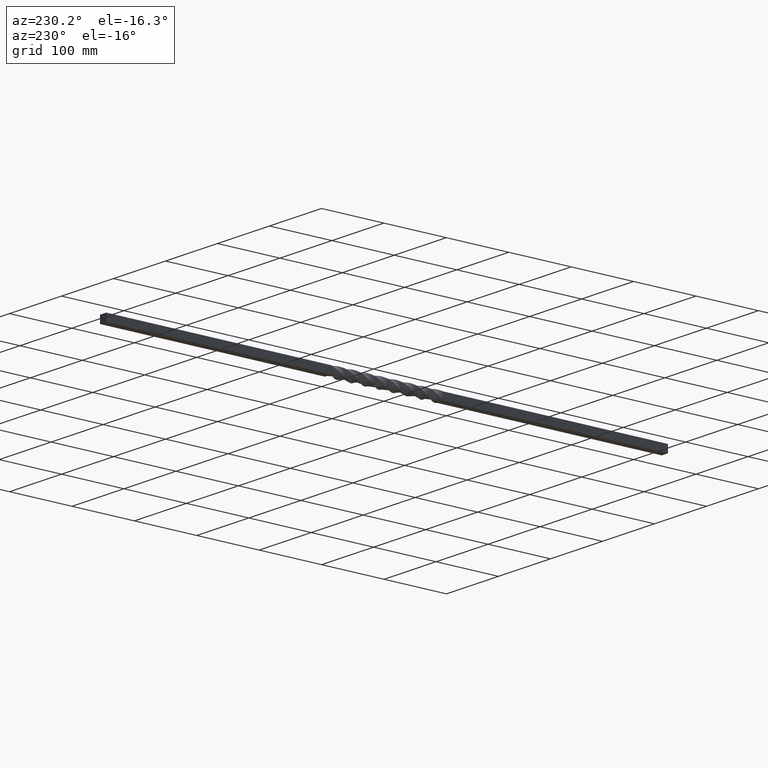
[diagram: clean part render]
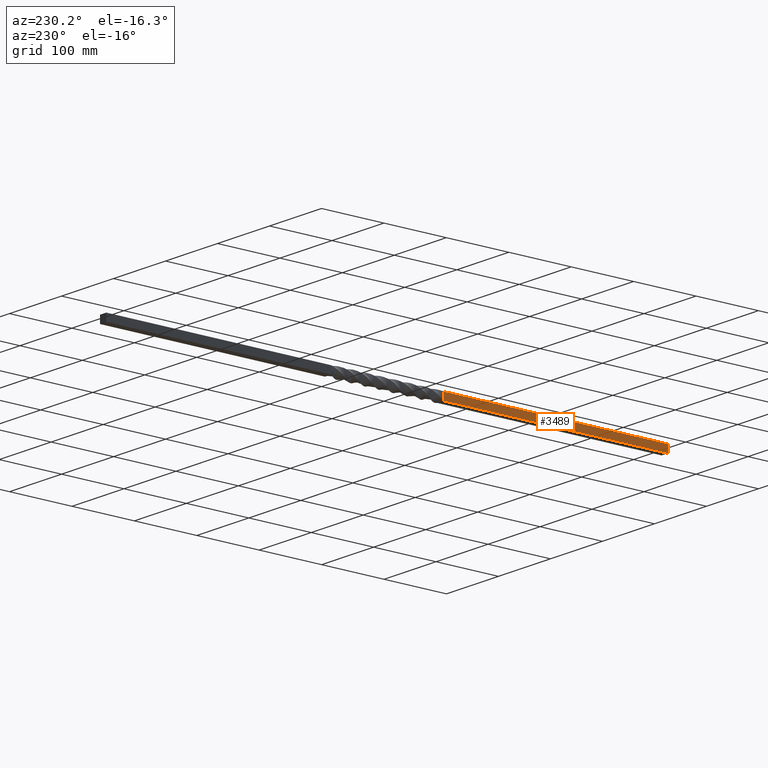
[diagram: same view with one face highlighted and labeled with its STEP entity id]
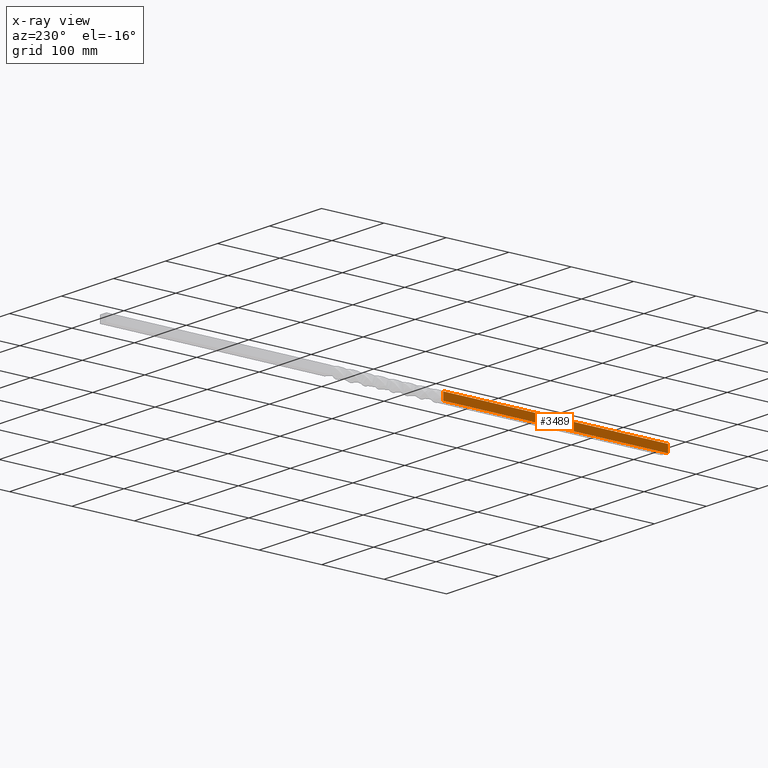
[diagram: x-ray of the same camera — body ghosted, the highlighted face saturated]
A machine part, auxiliary view. The second image highlights one B-rep face of the part: STEP entity #3489.
The next image is the same camera in x-ray: the body ghosted, the highlighted face saturated — about 0% of this face is hidden behind the body in this view.
In plain terms, the highlighted planar face has unit normal (1, 0, 0).
Its self-contained STEP definition (entity closure, byte-faithful):
#227 = VERTEX_POINT ( 'NONE', #8304 ) ;
#525 = CARTESIAN_POINT ( 'NONE',  ( -5.999999997126725937, -450.0000000000000000, -6.000000006995465540 ) ) ;
#974 = CARTESIAN_POINT ( 'NONE',  ( -6.000000000000000888, -90.00000000000000000, 0.000000000000000000 ) ) ;
#1280 = ORIENTED_EDGE ( 'NONE', *, *, #5200, .T. ) ;
#1424 = LINE ( 'NONE', #8721, #3751 ) ;
#1899 = DIRECTION ( 'NONE',  ( 0.000000000000000000, -0.000000000000000000, 1.000000000000000000 ) ) ;
#1963 = DIRECTION ( 'NONE',  ( -0.000000000000000000, 1.000000000000000000, -0.000000000000000000 ) ) ;
#3213 = AXIS2_PLACEMENT_3D ( 'NONE', #6167, #7919, #3617 ) ;
#3322 = EDGE_LOOP ( 'NONE', ( #1280, #8261, #9117, #6146 ) ) ;
#3489 = ADVANCED_FACE ( 'NONE', ( #9113 ), #4384, .F. ) ;
#3574 = VECTOR ( 'NONE', #7593, 1000.000000000000000 ) ;
#3617 = DIRECTION ( 'NONE',  ( 8.223900435132272051E-10, 0.000000000000000000, -1.000000000000000000 ) ) ;
#3709 = LINE ( 'NONE', #8416, #3574 ) ;
#3751 = VECTOR ( 'NONE', #1963, 1000.000000000000000 ) ;
#4260 = EDGE_CURVE ( 'NONE', #7216, #7700, #1424, .T. ) ;
#4384 = PLANE ( 'NONE',  #3213 ) ;
#4402 = LINE ( 'NONE', #974, #5217 ) ;
#4818 = EDGE_CURVE ( 'NONE', #9468, #7700, #4402, .T. ) ;
#5200 = EDGE_CURVE ( 'NONE', #227, #7216, #10385, .T. ) ;
#5217 = VECTOR ( 'NONE', #1899, 1000.000000000000000 ) ;
#5829 = CARTESIAN_POINT ( 'NONE',  ( -5.999999997126725937, -89.99999998638273269, -6.000000006995465540 ) ) ;
#6146 = ORIENTED_EDGE ( 'NONE', *, *, #8935, .F. ) ;
#6167 = CARTESIAN_POINT ( 'NONE',  ( -5.999999997126725937, -916.9705627633168206, -6.000000006995465540 ) ) ;
#6803 = CARTESIAN_POINT ( 'NONE',  ( -6.000000006995406032, -89.99999998638266163, 5.999999997126741924 ) ) ;
#7156 = DIRECTION ( 'NONE',  ( -8.223900435132272051E-10, 0.000000000000000000, 1.000000000000000000 ) ) ;
#7216 = VERTEX_POINT ( 'NONE', #10696 ) ;
#7219 = VECTOR ( 'NONE', #7156, 1000.000000000000000 ) ;
#7593 = DIRECTION ( 'NONE',  ( -0.000000000000000000, 1.000000000000000000, -0.000000000000000000 ) ) ;
#7700 = VERTEX_POINT ( 'NONE', #6803 ) ;
#7919 = DIRECTION ( 'NONE',  ( 1.000000000000000000, 0.000000000000000000, 8.223900435132272051E-10 ) ) ;
#8261 = ORIENTED_EDGE ( 'NONE', *, *, #4260, .T. ) ;
#8304 = CARTESIAN_POINT ( 'NONE',  ( -5.999999997126725937, -450.0000000000000000, -6.000000006995465540 ) ) ;
#8416 = CARTESIAN_POINT ( 'NONE',  ( -5.999999997126725937, -916.9705627633168206, -6.000000006995465540 ) ) ;
#8721 = CARTESIAN_POINT ( 'NONE',  ( -6.000000006995406032, -916.9705627633168206, 5.999999997126741924 ) ) ;
#8935 = EDGE_CURVE ( 'NONE', #227, #9468, #3709, .T. ) ;
#9113 = FACE_OUTER_BOUND ( 'NONE', #3322, .T. ) ;
#9117 = ORIENTED_EDGE ( 'NONE', *, *, #4818, .F. ) ;
#9468 = VERTEX_POINT ( 'NONE', #5829 ) ;
#10385 = LINE ( 'NONE', #525, #7219 ) ;
#10696 = CARTESIAN_POINT ( 'NONE',  ( -6.000000006995406032, -450.0000000000000000, 5.999999997126741924 ) ) ;